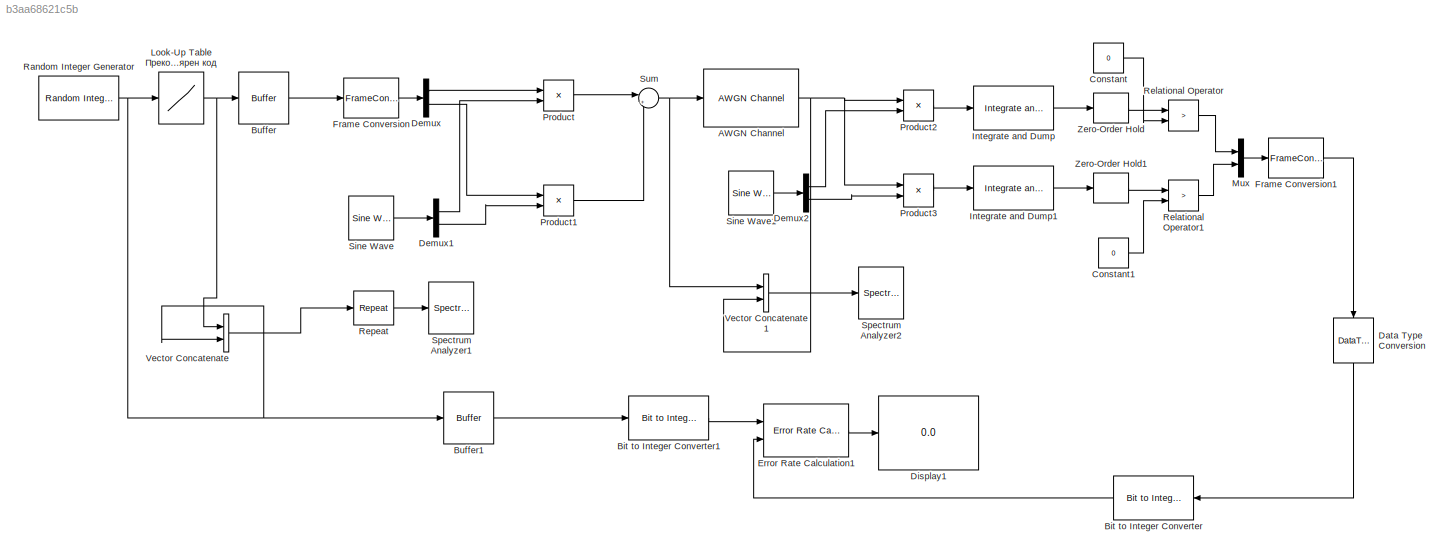
MODEL slx_b3aa68621c5b
KIND model
CONFIG AbsTol = auto
CONFIG FixedStep = auto
CONFIG MaxStep = auto
CONFIG MinStep = auto
CONFIG RelTol = 1e-3
CONFIG SampleTimeConstraint = Unconstrained
CONFIG Solver = FixedStepDiscrete
CONFIG SolverMode = SingleTasking
CONFIG SolverName = FixedStepDiscrete
CONFIG StartTime = 0.0
CONFIG StopTime = inf
BLOCK [Reference] AWGN Channel  REF=commchan3/AWGN
Channel
  EbNodB = 6
  EsNodB = 10
  InputProcessing = Columns as channels (frame based)
  Ports = [1, 1]
  Ps = 1
  SNRdB = 10
  SourceBlock = commchan3/AWGN\nChannel
  SourceType = AWGN Channel
  Tsym = 2
  UserDataPersistent = on
  bitsPerSym = 1
  noiseMode = Signal to noise ratio  (Eb/No)
  seed = 12397
  variance = 1
BLOCK [Reference] Bit to Integer Converter  REF=commutil2/Bit to Integer
Converter
  Ports = [1, 1]
  SourceBlock = commutil2/Bit to Integer\nConverter
  SourceType = Bit to Integer Converter
  bitOrder = MSB first
  nbits = 2
  outDtype = Inherit via internal rule
  outDtypeSigned = Inherit via internal rule
  signedOutputValues = Unsigned
BLOCK [Reference] Bit to Integer Converter1  REF=commutil2/Bit to Integer
Converter
  Ports = [1, 1]
  SourceBlock = commutil2/Bit to Integer\nConverter
  SourceType = Bit to Integer Converter
  bitOrder = MSB first
  nbits = 2
  outDtype = Inherit via internal rule
  outDtypeSigned = Inherit via internal rule
  signedOutputValues = Unsigned
BLOCK [Buffer] Buffer
  N = 2
  TreatMby1Signals = One channel
BLOCK [Buffer] Buffer1
  N = 2
  TreatMby1Signals = One channel
BLOCK [Constant] Constant
  Value = 0
BLOCK [Constant] Constant1
  Value = 0
BLOCK [DataTypeConversion] Data Type Conversion
  RndMeth = Floor
  SaturateOnIntegerOverflow = off
BLOCK [Demux] Demux
  DisplayOption = bar
  Outputs = 2
  Ports = [1, 2]
BLOCK [Demux] Demux1
  DisplayOption = bar
  Outputs = 2
  Ports = [1, 2]
BLOCK [Demux] Demux2
  DisplayOption = bar
  Outputs = 2
  Ports = [1, 2]
BLOCK [Display] Display1
  Decimation = 1
  Ports = [1]
BLOCK [Reference] Error Rate Calculation1  REF=commsink2/Error Rate
Calculation
  N = 1
  PMode = Port
  Ports = [2, 1]
  RsMode2 = off
  SourceBlock = commsink2/Error Rate\nCalculation
  SourceType = Error Rate Calculation
  WsName = ErrorVec
  cp_mode = Entire frame
  maxBits = 1e6
  numErr = 100
  st_delay = 1
  stop = off
  subframe = []
BLOCK [FrameConversion] Frame Conversion
  OutFrame = Sample-based
  Ports = [1, 1]
BLOCK [FrameConversion] Frame Conversion1
  Ports = [1, 1]
BLOCK [Reference] Integrate and Dump  REF=commfilt2/Integrate
and Dump
  LockScale = off
  Ports = [1, 1]
  SourceBlock = commfilt2/Integrate\nand Dump
  SourceType = Integrate and Dump
  accumFracLength = 30
  accumMode = Inherit via internal rule
  accumWordLength = 32
  nodump = off
  obssamples = 100
  offsetsamples = 0
  outputFracLength = 30
  outputMode = Same as accumulator
  outputWordLength = 32
  overflowMode = off
  roundingMode = Floor
BLOCK [Reference] Integrate and Dump1  REF=commfilt2/Integrate
and Dump
  LockScale = off
  Ports = [1, 1]
  SourceBlock = commfilt2/Integrate\nand Dump
  SourceType = Integrate and Dump
  accumFracLength = 30
  accumMode = Inherit via internal rule
  accumWordLength = 32
  nodump = off
  obssamples = 100
  offsetsamples = 0
  outputFracLength = 30
  outputMode = Same as accumulator
  outputWordLength = 32
  overflowMode = off
  roundingMode = Floor
BLOCK [Lookup] Look-Up Table Прекодер в биполярен код
  InputValues = [0 1]
  Table = [-1 1]
BLOCK [Mux] Mux
  DisplayOption = bar
  Inputs = 2
  Ports = [2, 1]
BLOCK [Product] Product
  InputSameDT = off
  OutDataTypeStr = Inherit: Inherit via internal rule
  Ports = [2, 1]
  RndMeth = Floor
  SaturateOnIntegerOverflow = off
BLOCK [Product] Product1
  InputSameDT = off
  OutDataTypeStr = Inherit: Inherit via internal rule
  Ports = [2, 1]
  RndMeth = Floor
  SaturateOnIntegerOverflow = off
BLOCK [Product] Product2
  InputSameDT = off
  OutDataTypeStr = Inherit: Inherit via internal rule
  Ports = [2, 1]
  RndMeth = Floor
  SaturateOnIntegerOverflow = off
BLOCK [Product] Product3
  InputSameDT = off
  OutDataTypeStr = Inherit: Inherit via internal rule
  Ports = [2, 1]
  RndMeth = Floor
  SaturateOnIntegerOverflow = off
BLOCK [Reference] Random Integer Generator  REF=commrandsrc2/Random Integer
Generator
  Ports = [0, 1]
  SourceBlock = commrandsrc2/Random Integer\nGenerator
  SourceType = Random Integer Generator
  Ts = 1
  frameBased = off
  mul = 2
  orient = off
  outDataType = double
  sampPerFrame = 1
  seed = 37
BLOCK [RelationalOperator] Relational Operator
  InputSameDT = off
  Operator = >
  OutDataTypeStr = boolean
  Ports = [2, 1]
BLOCK [RelationalOperator] Relational Operator1
  InputSameDT = off
  Operator = >
  OutDataTypeStr = boolean
  Ports = [2, 1]
BLOCK [Reference] Repeat  REF=dspsigops/Repeat
  InputProcessing = Elements as channels (sample based)
  N = 10
  Ports = [1, 1]
  RateOptions = Allow multirate processing
  SourceBlock = dspsigops/Repeat
  SourceType = Repeat
  UserDataPersistent = on
  ic = 0
  mode = Unused parameter value
BLOCK [Reference] Sine Wave  REF=dspsrcs4/Sine Wave
  Amplitude = [1 -1]
  CompMethod = Trigonometric fcn
  Frequency = 5
  LastOutDataTypeStr = double
  OutComplex = Real
  OutDataTypeStr = double
  Phase = [0 pi/2]
  Ports = [0, 1]
  ResetState = Restart at time zero
  SampleMode = Discrete
  SampleTime = 1/50
  SamplesPerFrame = 1
  SourceBlock = dspsrcs4/Sine Wave
  SourceType = Sine Wave
  TableSize = Speed
  additionalParams = off
  allowOverrides = on
  dataType = double
  fracBitsMode = Best precision
  numFracBits = 15
  udDataType = sfix(16)
  wordLen = 16
BLOCK [Reference] Sine Wave1  REF=dspsrcs4/Sine Wave
  Amplitude = [1 -1]
  CompMethod = Trigonometric fcn
  Frequency = 5
  LastOutDataTypeStr = double
  OutComplex = Real
  OutDataTypeStr = double
  Phase = [0 pi/2]
  Ports = [0, 1]
  ResetState = Restart at time zero
  SampleMode = Discrete
  SampleTime = 1/50
  SamplesPerFrame = 1
  SourceBlock = dspsrcs4/Sine Wave
  SourceType = Sine Wave
  TableSize = Speed
  additionalParams = off
  allowOverrides = on
  dataType = double
  fracBitsMode = Best precision
  numFracBits = 15
  udDataType = sfix(16)
  wordLen = 16
BLOCK [SpectrumAnalyzer] Spectrum Analyzer1
  Ports = [1]
  ScopeSpecificationString = spbscopes.SpectrumAnalyzerBlockCfg('CurrentConfiguration', extmgr.ConfigurationSet(extmgr.Configuration('Core','General UI',true),extmgr.Configuration('Core','Source UI',true),extmgr.Configuration('Sources','WiredSimulink',true),extmgr.Configuration('Sources','Simulink',false),extmgr.Configuration('Sources','SimulinkEvent',false),extmgr.Configuration('Sources','File',false),extmgr.Configuration('S...<+7538ch>
BLOCK [SpectrumAnalyzer] Spectrum Analyzer2
  Ports = [1]
  ScopeSpecificationString = spbscopes.SpectrumAnalyzerBlockCfg('CurrentConfiguration', extmgr.ConfigurationSet(extmgr.Configuration('Core','General UI',true),extmgr.Configuration('Core','Source UI',true),extmgr.Configuration('Sources','WiredSimulink',true),extmgr.Configuration('Sources','Simulink',false),extmgr.Configuration('Sources','SimulinkEvent',false),extmgr.Configuration('Sources','File',false),extmgr.Configuration('S...<+7539ch>
BLOCK [Sum] Sum
  IconShape = round
  InputSameDT = off
  Inputs = |++
  OutDataTypeStr = Inherit: Inherit via internal rule
  Ports = [2, 1]
  SaturateOnIntegerOverflow = off
BLOCK [Concatenate] Vector Concatenate
  ConcatenateDimension = 2
  Mode = Multidimensional array
  Ports = [2, 1]
BLOCK [Concatenate] Vector Concatenate1
  ConcatenateDimension = 2
  Mode = Multidimensional array
  Ports = [2, 1]
BLOCK [ZeroOrderHold] Zero-Order Hold
  SampleTime = 2
BLOCK [ZeroOrderHold] Zero-Order Hold1
  SampleTime = 2
NET AWGN Channel:1 -> Product2:1, Product3:1, Vector Concatenate1:2
LINE Bit to Integer Converter1:1 -> Error Rate Calculation1:1
LINE Bit to Integer Converter:1 -> Error Rate Calculation1:2
LINE Buffer1:1 -> Bit to Integer Converter1:1
LINE Buffer:1 -> Frame Conversion:1
LINE Constant1:1 -> Relational Operator1:2
LINE Constant:1 -> Relational Operator:2
LINE Data Type Conversion:1 -> Bit to Integer Converter:1
LINE Demux1:1 -> Product:2
LINE Demux1:2 -> Product1:2
LINE Demux2:1 -> Product2:2
LINE Demux2:2 -> Product3:2
LINE Demux:1 -> Product:1
LINE Demux:2 -> Product1:1
LINE Error Rate Calculation1:1 -> Display1:1
LINE Frame Conversion1:1 -> Data Type Conversion:1
LINE Frame Conversion:1 -> Demux:1
LINE Integrate and Dump1:1 -> Zero-Order Hold1:1
LINE Integrate and Dump:1 -> Zero-Order Hold:1
NET Look-Up Table Прекодер в биполярен код:1 -> Buffer:1, Vector Concatenate:1
LINE Mux:1 -> Frame Conversion1:1
LINE Product1:1 -> Sum:2
LINE Product2:1 -> Integrate and Dump:1
LINE Product3:1 -> Integrate and Dump1:1
LINE Product:1 -> Sum:1
NET Random Integer Generator:1 -> Buffer1:1, Look-Up Table Прекодер в биполярен код:1, Vector Concatenate:2
LINE Relational Operator1:1 -> Mux:2
LINE Relational Operator:1 -> Mux:1
LINE Repeat:1 -> Spectrum Analyzer1:1
LINE Sine Wave1:1 -> Demux2:1
LINE Sine Wave:1 -> Demux1:1
NET Sum:1 -> AWGN Channel:1, Vector Concatenate1:1
LINE Vector Concatenate1:1 -> Spectrum Analyzer2:1
LINE Vector Concatenate:1 -> Repeat:1
LINE Zero-Order Hold1:1 -> Relational Operator1:1
LINE Zero-Order Hold:1 -> Relational Operator:1
note: NET lines group one-source signal fan-out (src -> all destinations, sorted); 1:1 wires keep LINE
